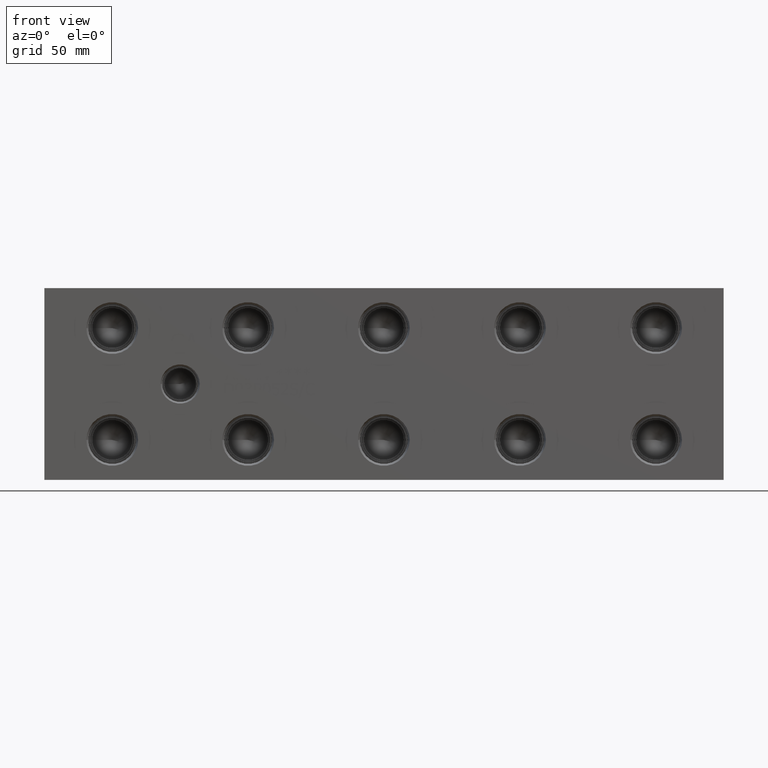
[diagram: clean part render]
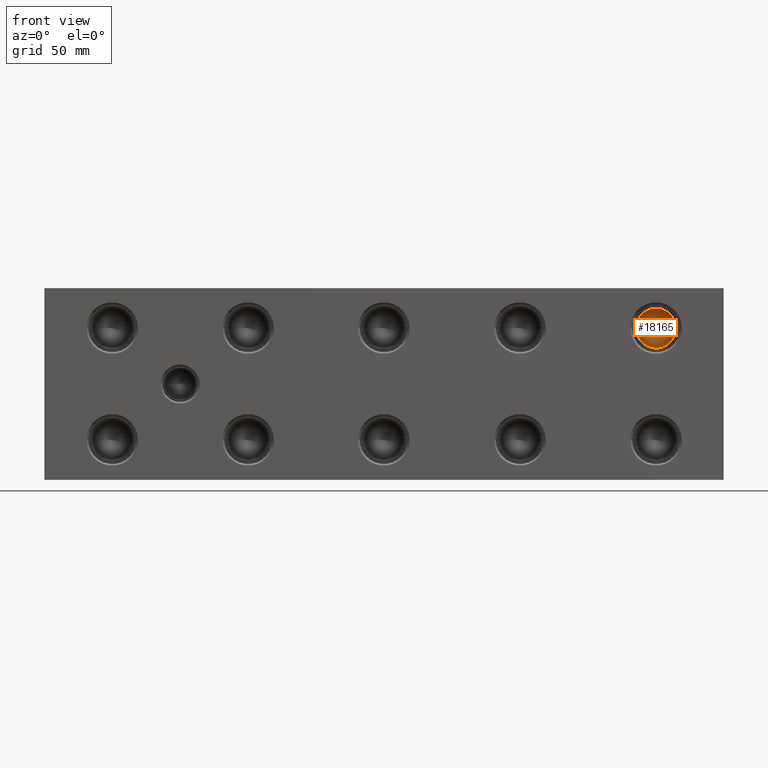
[diagram: same view with one face highlighted and labeled with its STEP entity id]
A machine part, front view. The second image highlights one B-rep face of the part: STEP entity #18165.
In plain terms, the highlighted conical surface has half-angle 60 deg.
Its self-contained STEP definition (entity closure, byte-faithful):
#59=CONICAL_SURFACE('',#19156,3.96875,1.0471975511966);
#525=CIRCLE('',#19157,7.9375);
#526=CIRCLE('',#19158,7.9375);
#2465=FACE_OUTER_BOUND('',#3525,.T.);
#3525=EDGE_LOOP('',(#15283,#15284,#15285,#15286));
#5173=LINE('',#30970,#6705);
#6705=VECTOR('',#22609,3.96875);
#8270=VERTEX_POINT('',#30966);
#8271=VERTEX_POINT('',#30967);
#8272=VERTEX_POINT('',#30969);
#10714=EDGE_CURVE('',#8270,#8271,#525,.T.);
#10715=EDGE_CURVE('',#8271,#8272,#5173,.T.);
#10716=EDGE_CURVE('',#8271,#8270,#526,.T.);
#15283=ORIENTED_EDGE('',*,*,#10714,.T.);
#15284=ORIENTED_EDGE('',*,*,#10715,.T.);
#15285=ORIENTED_EDGE('',*,*,#10715,.F.);
#15286=ORIENTED_EDGE('',*,*,#10716,.T.);
#18165=ADVANCED_FACE('',(#2465),#59,.F.);
#19156=AXIS2_PLACEMENT_3D('',#30965,#22605,#22606);
#19157=AXIS2_PLACEMENT_3D('',#30968,#22607,#22608);
#19158=AXIS2_PLACEMENT_3D('',#30971,#22610,#22611);
#22605=DIRECTION('center_axis',(0.,-1.,0.));
#22606=DIRECTION('ref_axis',(1.,0.,0.));
#22607=DIRECTION('center_axis',(0.,-1.,0.));
#22608=DIRECTION('ref_axis',(1.,0.,0.));
#22609=DIRECTION('',(0.866025403784439,0.5,1.06057523872491E-16));
#22610=DIRECTION('center_axis',(0.,-1.,0.));
#22611=DIRECTION('ref_axis',(1.,0.,0.));
#30965=CARTESIAN_POINT('Origin',(243.1288,25.5239588808463,60.325));
#30966=CARTESIAN_POINT('',(251.0663,23.2326,60.325));
#30967=CARTESIAN_POINT('',(235.1913,23.2326,60.325));
#30968=CARTESIAN_POINT('Origin',(243.1288,23.2326,60.325));
#30969=CARTESIAN_POINT('',(243.1288,27.8153177616927,60.325));
#30970=CARTESIAN_POINT('',(239.16005,25.5239588808463,60.325));
#30971=CARTESIAN_POINT('Origin',(243.1288,23.2326,60.325));